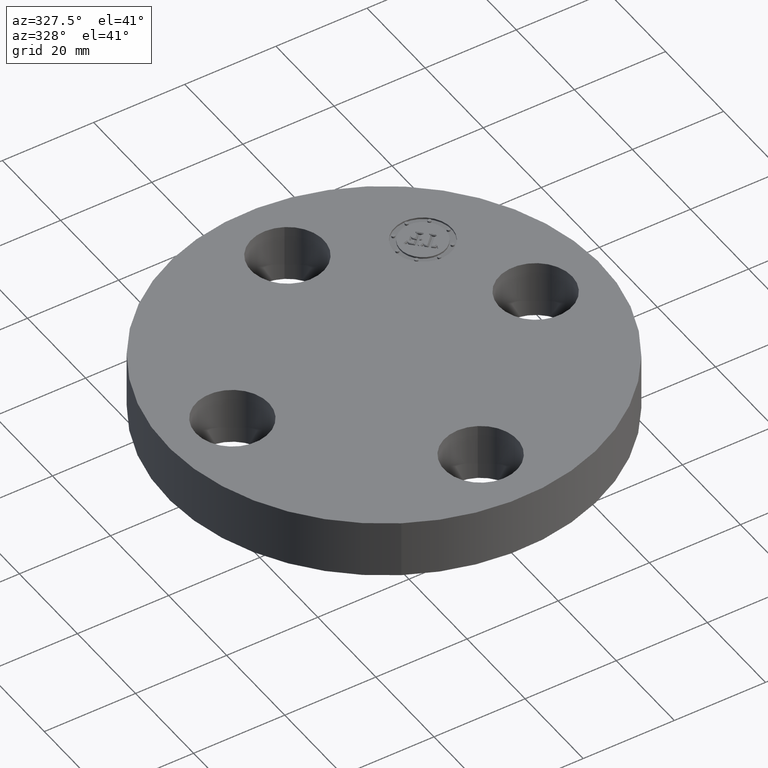
[diagram: clean part render]
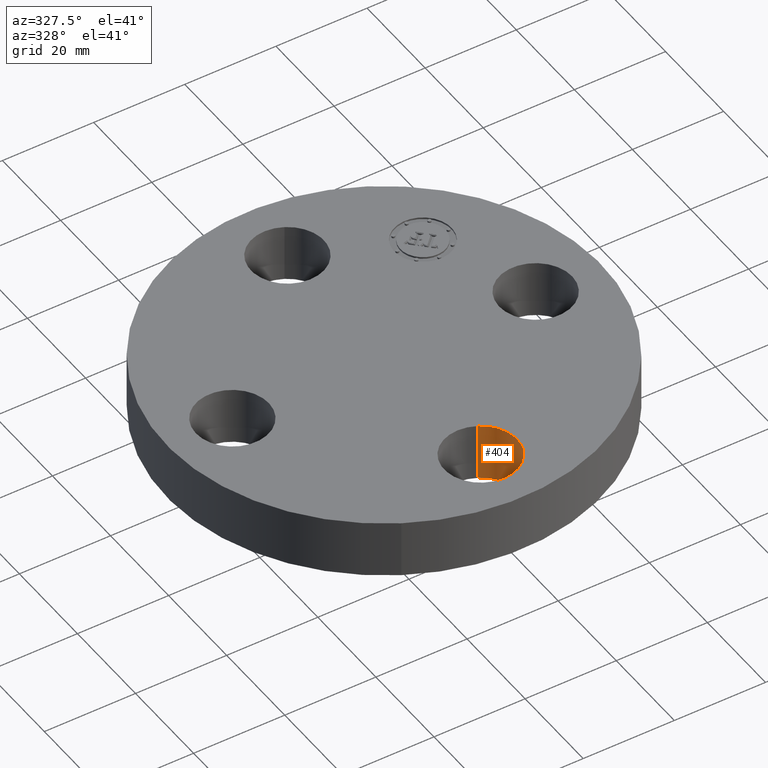
[diagram: same view with one face highlighted and labeled with its STEP entity id]
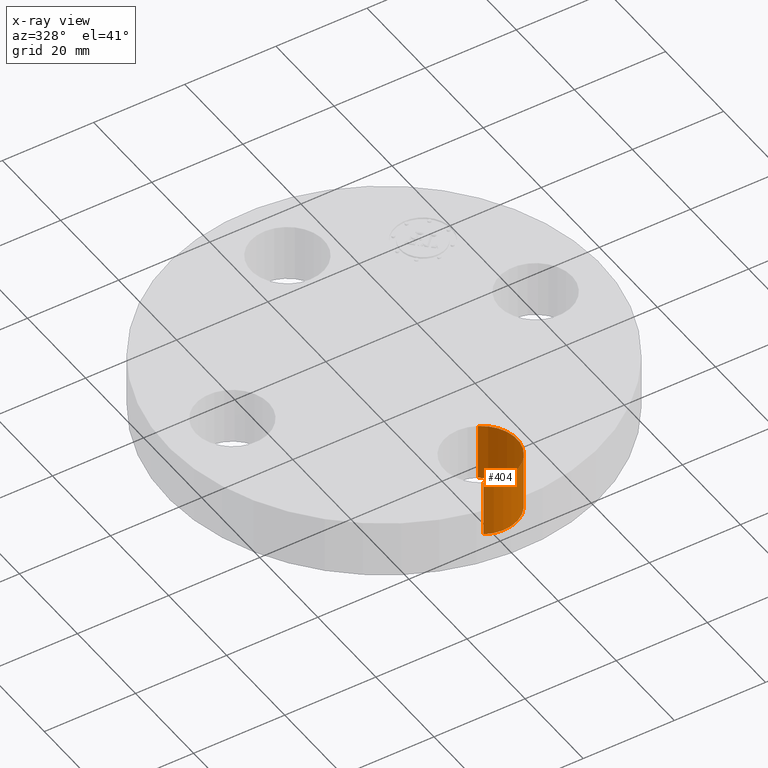
[diagram: x-ray of the same camera — body ghosted, the highlighted face saturated]
A machine part, auxiliary view. The second image highlights one B-rep face of the part: STEP entity #404.
The next image is the same camera in x-ray: the body ghosted, the highlighted face saturated — about 0% of this face is hidden behind the body in this view.
In plain terms, the highlighted cylindrical surface (partial cylindrical patch) has radius 8.001 mm, axis along (0, -0, -1).
Its self-contained STEP definition (entity closure, byte-faithful):
#235=AXIS2_PLACEMENT_3D('Circle Axis2P3D',#233,#234,$) ;
#377=AXIS2_PLACEMENT_3D('Cylinder Axis2P3D',#374,#375,#376) ;
#395=AXIS2_PLACEMENT_3D('Circle Axis2P3D',#393,#394,$) ;
#233=CARTESIAN_POINT('Axis2P3D Location',(-3.49676543189E-017,-1.31000000001,0.)) ;
#237=CARTESIAN_POINT('Vertex',(0.151019044661,-1.03356149301,0.)) ;
#239=CARTESIAN_POINT('Vertex',(-0.151019044661,-1.586438507,0.)) ;
#374=CARTESIAN_POINT('Axis2P3D Location',(-1.99526869207E-016,-1.31000000001,0.496062992128)) ;
#379=CARTESIAN_POINT('Line Origine',(0.151019044661,-1.03356149301,0.250000000001)) ;
#383=CARTESIAN_POINT('Vertex',(0.151019044661,-1.03356149301,0.500000000002)) ;
#386=CARTESIAN_POINT('Line Origine',(-0.151019044661,-1.586438507,0.250000000001)) ;
#390=CARTESIAN_POINT('Vertex',(-0.151019044661,-1.586438507,0.500000000002)) ;
#393=CARTESIAN_POINT('Axis2P3D Location',(-1.99526869207E-016,-1.31000000001,0.500000000002)) ;
#234=DIRECTION('Axis2P3D Direction',(0.,0.,-0.0393700787402)) ;
#375=DIRECTION('Axis2P3D Direction',(0.,-0.,-0.0393700787402)) ;
#376=DIRECTION('Axis2P3D XDirection',(-0.0188750212049,-0.0345504945626,0.)) ;
#380=DIRECTION('Vector Direction',(0.,0.,-0.0393700787402)) ;
#387=DIRECTION('Vector Direction',(0.,0.,-0.0393700787402)) ;
#394=DIRECTION('Axis2P3D Direction',(0.,-0.,-0.0393700787402)) ;
#381=VECTOR('Line Direction',#380,0.0393700787402) ;
#388=VECTOR('Line Direction',#387,0.0393700787402) ;
#399=ORIENTED_EDGE('',*,*,#385,.F.) ;
#400=ORIENTED_EDGE('',*,*,#241,.T.) ;
#401=ORIENTED_EDGE('',*,*,#392,.T.) ;
#402=ORIENTED_EDGE('',*,*,#397,.F.) ;
#404=ADVANCED_FACE('PartBody',(#403),#378,.F.) ;
#236=CIRCLE('generated circle',#235,0.315000000001) ;
#396=CIRCLE('generated circle',#395,0.315000000001) ;
#378=CYLINDRICAL_SURFACE('generated cylinder',#377,0.315000000001) ;
#241=EDGE_CURVE('',#238,#240,#236,.T.) ;
#385=EDGE_CURVE('',#238,#384,#382,.F.) ;
#392=EDGE_CURVE('',#240,#391,#389,.F.) ;
#397=EDGE_CURVE('',#384,#391,#396,.T.) ;
#398=EDGE_LOOP('',(#399,#400,#401,#402)) ;
#403=FACE_OUTER_BOUND('',#398,.T.) ;
#382=LINE('Line',#379,#381) ;
#389=LINE('Line',#386,#388) ;
#238=VERTEX_POINT('',#237) ;
#240=VERTEX_POINT('',#239) ;
#384=VERTEX_POINT('',#383) ;
#391=VERTEX_POINT('',#390) ;